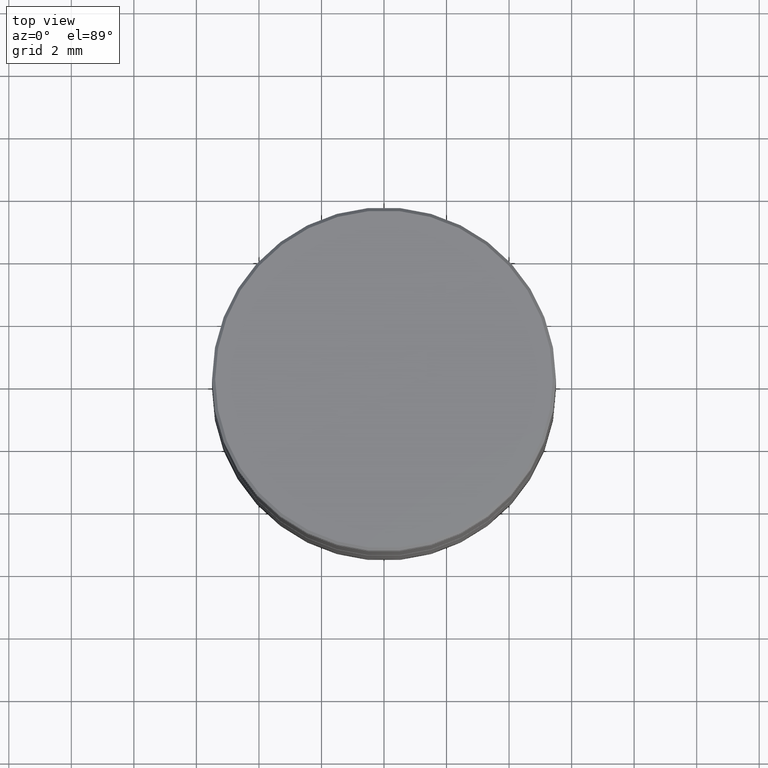
[diagram: clean part render]
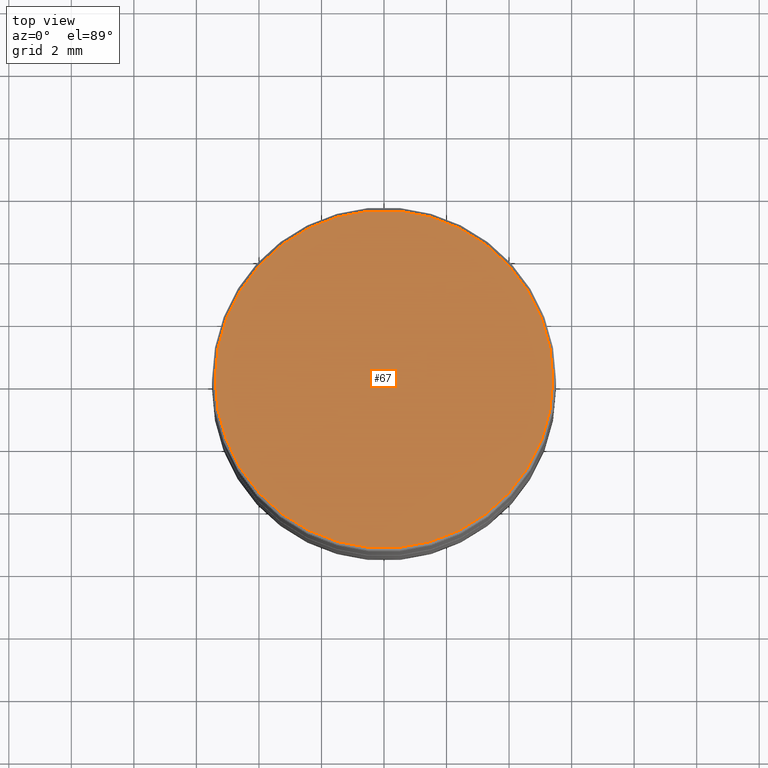
[diagram: same view with one face highlighted and labeled with its STEP entity id]
A machine part, top view. The second image highlights one B-rep face of the part: STEP entity #67.
In plain terms, the highlighted planar face has unit normal (0, -0, 1).
Its self-contained STEP definition (entity closure, byte-faithful):
#22 = CARTESIAN_POINT ( 'NONE',  ( 0.000000000000000000, 0.000000000000000000, 0.000000000000000000 ) ) ;
#67 = ADVANCED_FACE ( 'NONE', ( #1056 ), #179, .T. ) ;
#164 = EDGE_CURVE ( 'NONE', #1009, #671, #862, .T. ) ;
#179 = PLANE ( 'NONE',  #703 ) ;
#212 = DIRECTION ( 'NONE',  ( 1.000000000000000000, 0.000000000000000000, 0.000000000000000000 ) ) ;
#254 = EDGE_CURVE ( 'NONE', #671, #1009, #637, .T. ) ;
#281 = DIRECTION ( 'NONE',  ( 1.000000000000000000, 0.000000000000000000, 0.000000000000000000 ) ) ;
#405 = CARTESIAN_POINT ( 'NONE',  ( 0.000000000000000000, 0.000000000000000000, 0.000000000000000000 ) ) ;
#417 = CARTESIAN_POINT ( 'NONE',  ( 0.000000000000000000, 0.000000000000000000, 0.000000000000000000 ) ) ;
#447 = DIRECTION ( 'NONE',  ( -0.000000000000000000, -0.000000000000000000, 1.000000000000000000 ) ) ;
#582 = ORIENTED_EDGE ( 'NONE', *, *, #254, .T. ) ;
#611 = DIRECTION ( 'NONE',  ( 0.000000000000000000, -0.000000000000000000, 1.000000000000000000 ) ) ;
#637 = CIRCLE ( 'NONE', #999, 5.400000000000005684 ) ;
#671 = VERTEX_POINT ( 'NONE', #1257 ) ;
#703 = AXIS2_PLACEMENT_3D ( 'NONE', #405, #611, #281 ) ;
#862 = CIRCLE ( 'NONE', #950, 5.400000000000005684 ) ;
#874 = DIRECTION ( 'NONE',  ( 1.000000000000000000, 0.000000000000000000, 0.000000000000000000 ) ) ;
#950 = AXIS2_PLACEMENT_3D ( 'NONE', #417, #1084, #212 ) ;
#999 = AXIS2_PLACEMENT_3D ( 'NONE', #22, #447, #874 ) ;
#1009 = VERTEX_POINT ( 'NONE', #1110 ) ;
#1056 = FACE_OUTER_BOUND ( 'NONE', #1276, .T. ) ;
#1084 = DIRECTION ( 'NONE',  ( -0.000000000000000000, -0.000000000000000000, 1.000000000000000000 ) ) ;
#1110 = CARTESIAN_POINT ( 'NONE',  ( -5.400000000000005684, 0.000000000000000000, 0.000000000000000000 ) ) ;
#1151 = ORIENTED_EDGE ( 'NONE', *, *, #164, .T. ) ;
#1257 = CARTESIAN_POINT ( 'NONE',  ( 5.400000000000005684, 6.674325055353078196E-16, 0.000000000000000000 ) ) ;
#1276 = EDGE_LOOP ( 'NONE', ( #1151, #582 ) ) ;